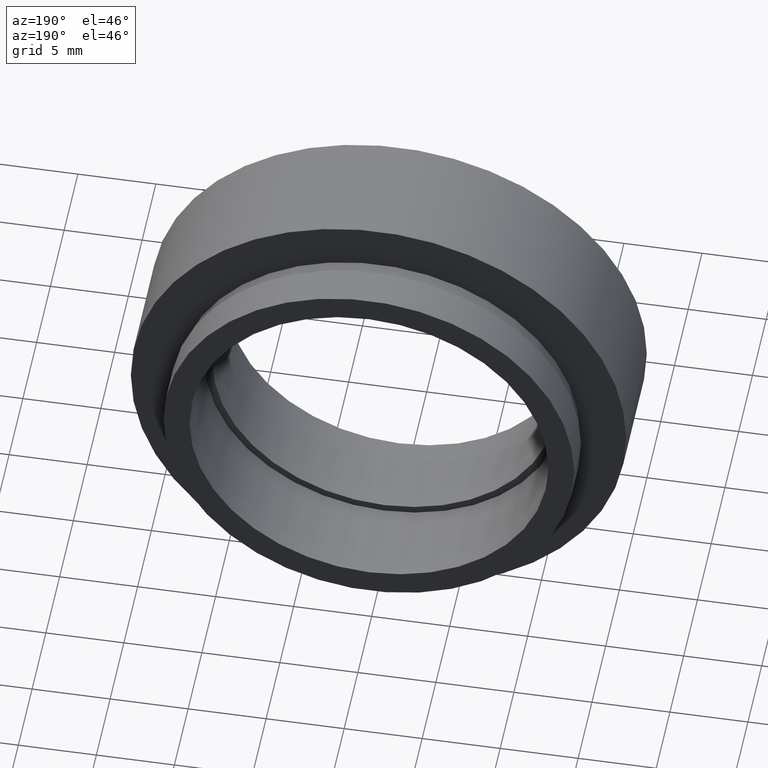
[diagram: clean part render]
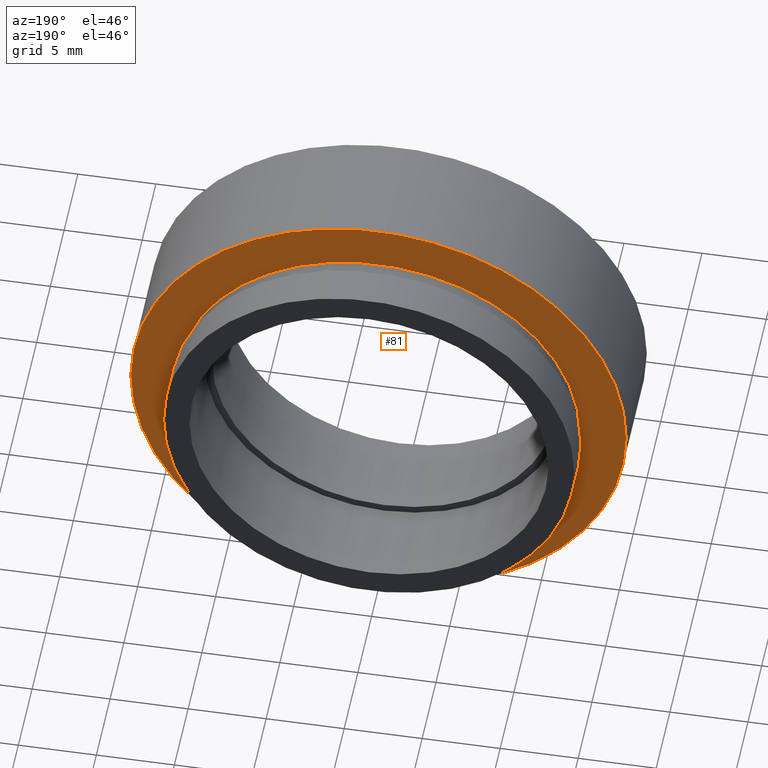
[diagram: same view with one face highlighted and labeled with its STEP entity id]
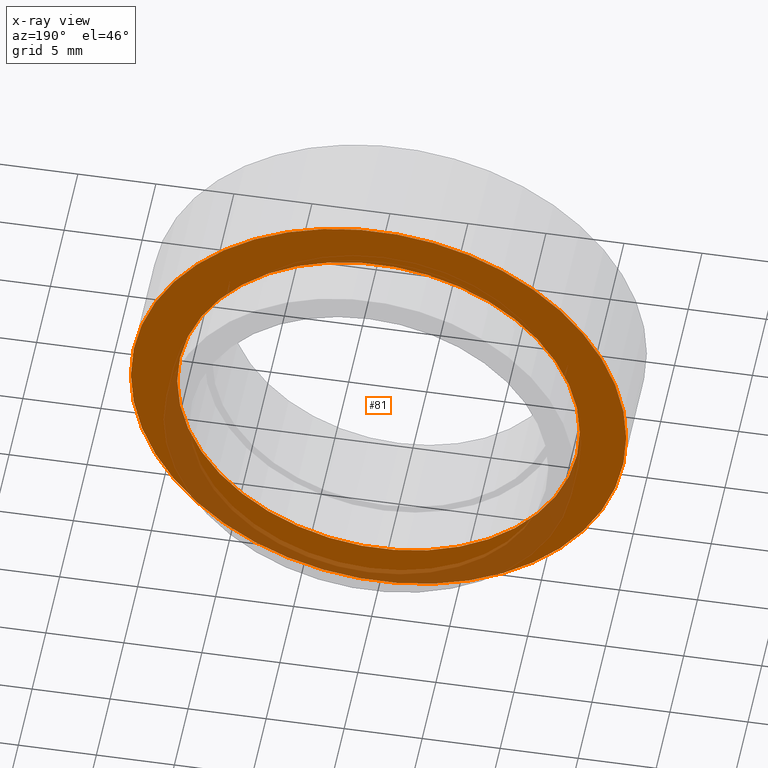
[diagram: x-ray of the same camera — body ghosted, the highlighted face saturated]
A machine part, auxiliary view. The second image highlights one B-rep face of the part: STEP entity #81.
The next image is the same camera in x-ray: the body ghosted, the highlighted face saturated — about 21% of this face is hidden behind the body in this view.
In plain terms, the highlighted planar face has unit normal (0, -1, 0).
Its self-contained STEP definition (entity closure, byte-faithful):
#9 = CARTESIAN_POINT ( 'NONE',  ( 12.90000000000000200, 7.500000000000000000, 0.0000000000000000000 ) ) ;
#18 = PLANE ( 'NONE',  #33 ) ;
#33 = AXIS2_PLACEMENT_3D ( 'NONE', #9, #147, #193 ) ;
#45 = FACE_BOUND ( 'NONE', #490, .T. ) ;
#51 = EDGE_CURVE ( 'NONE', #93, #419, #370, .T. ) ;
#57 = AXIS2_PLACEMENT_3D ( 'NONE', #476, #149, #180 ) ;
#59 = CARTESIAN_POINT ( 'NONE',  ( 12.90000000000000200, 7.500000000000000000, 1.579794370900085700E-015 ) ) ;
#81 = ADVANCED_FACE ( 'NONE', ( #45, #167 ), #18, .F. ) ;
#93 = VERTEX_POINT ( 'NONE', #479 ) ;
#96 = AXIS2_PLACEMENT_3D ( 'NONE', #171, #247, #128 ) ;
#128 = DIRECTION ( 'NONE',  ( -1.000000000000000000, -1.344746880602176000E-016, 0.0000000000000000000 ) ) ;
#146 = CARTESIAN_POINT ( 'NONE',  ( 1.149455719078122700E-015, 7.499999999999998200, 0.0000000000000000000 ) ) ;
#147 = DIRECTION ( 'NONE',  ( 1.224646799147351000E-016, -1.000000000000000000, 0.0000000000000000000 ) ) ;
#149 = DIRECTION ( 'NONE',  ( -1.224646799147351000E-016, 1.000000000000000000, -0.0000000000000000000 ) ) ;
#156 = EDGE_CURVE ( 'NONE', #279, #543, #176, .T. ) ;
#167 = FACE_OUTER_BOUND ( 'NONE', #355, .T. ) ;
#171 = CARTESIAN_POINT ( 'NONE',  ( 1.149455719078122700E-015, 7.499999999999998200, 0.0000000000000000000 ) ) ;
#176 = CIRCLE ( 'NONE', #57, 12.90000000000000000 ) ;
#180 = DIRECTION ( 'NONE',  ( -1.000000000000000000, -1.344746880602176000E-016, 0.0000000000000000000 ) ) ;
#193 = DIRECTION ( 'NONE',  ( 1.000000000000000000, 1.224646799147351000E-016, 0.0000000000000000000 ) ) ;
#195 = DIRECTION ( 'NONE',  ( -1.000000000000000000, -1.092739197465705300E-016, 0.0000000000000000000 ) ) ;
#198 = CIRCLE ( 'NONE', #327, 15.87500000000000000 ) ;
#211 = EDGE_CURVE ( 'NONE', #419, #93, #198, .T. ) ;
#223 = DIRECTION ( 'NONE',  ( -1.224646799147351000E-016, 1.000000000000000000, -0.0000000000000000000 ) ) ;
#236 = CIRCLE ( 'NONE', #96, 12.90000000000000000 ) ;
#247 = DIRECTION ( 'NONE',  ( -1.224646799147351000E-016, 1.000000000000000000, -0.0000000000000000000 ) ) ;
#248 = ORIENTED_EDGE ( 'NONE', *, *, #418, .F. ) ;
#279 = VERTEX_POINT ( 'NONE', #399 ) ;
#306 = DIRECTION ( 'NONE',  ( -1.224646799147351000E-016, 1.000000000000000000, -0.0000000000000000000 ) ) ;
#313 = ORIENTED_EDGE ( 'NONE', *, *, #51, .T. ) ;
#327 = AXIS2_PLACEMENT_3D ( 'NONE', #146, #306, #195 ) ;
#355 = EDGE_LOOP ( 'NONE', ( #434, #313 ) ) ;
#370 = CIRCLE ( 'NONE', #541, 15.87500000000000000 ) ;
#387 = CARTESIAN_POINT ( 'NONE',  ( 1.149455719078122700E-015, 7.499999999999998200, 0.0000000000000000000 ) ) ;
#399 = CARTESIAN_POINT ( 'NONE',  ( -12.89999999999999900, 7.499999999999996400, 0.0000000000000000000 ) ) ;
#418 = EDGE_CURVE ( 'NONE', #543, #279, #236, .T. ) ;
#419 = VERTEX_POINT ( 'NONE', #534 ) ;
#428 = DIRECTION ( 'NONE',  ( -1.000000000000000000, -1.092739197465705300E-016, 0.0000000000000000000 ) ) ;
#432 = ORIENTED_EDGE ( 'NONE', *, *, #156, .F. ) ;
#434 = ORIENTED_EDGE ( 'NONE', *, *, #211, .T. ) ;
#476 = CARTESIAN_POINT ( 'NONE',  ( 1.149455719078122700E-015, 7.499999999999998200, 0.0000000000000000000 ) ) ;
#479 = CARTESIAN_POINT ( 'NONE',  ( 15.87500000000000000, 7.500000000000000000, 1.944126793646423200E-015 ) ) ;
#490 = EDGE_LOOP ( 'NONE', ( #432, #248 ) ) ;
#534 = CARTESIAN_POINT ( 'NONE',  ( -15.87500000000000000, 7.499999999999996400, 0.0000000000000000000 ) ) ;
#541 = AXIS2_PLACEMENT_3D ( 'NONE', #387, #223, #428 ) ;
#543 = VERTEX_POINT ( 'NONE', #59 ) ;